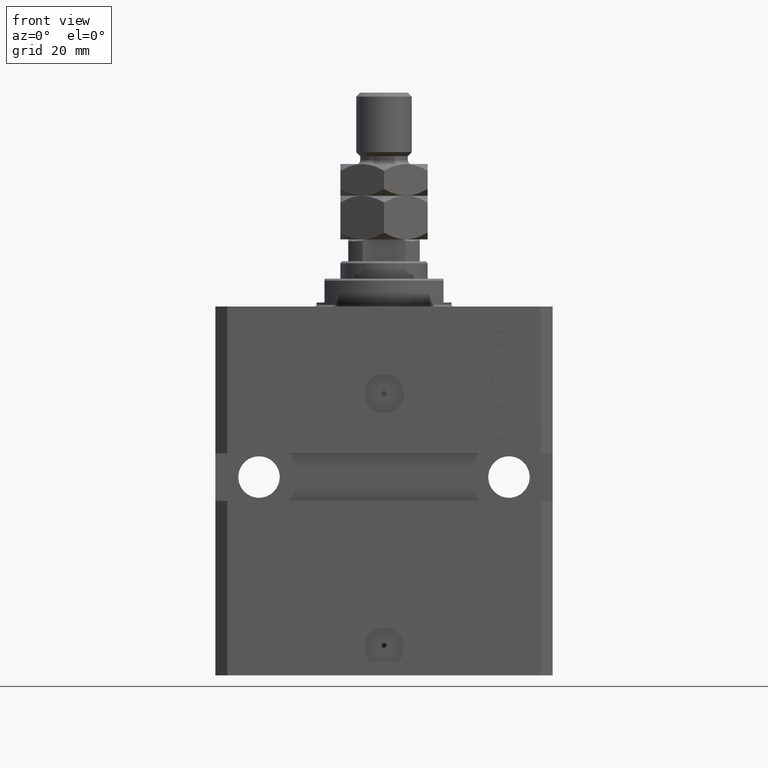
[diagram: clean part render]
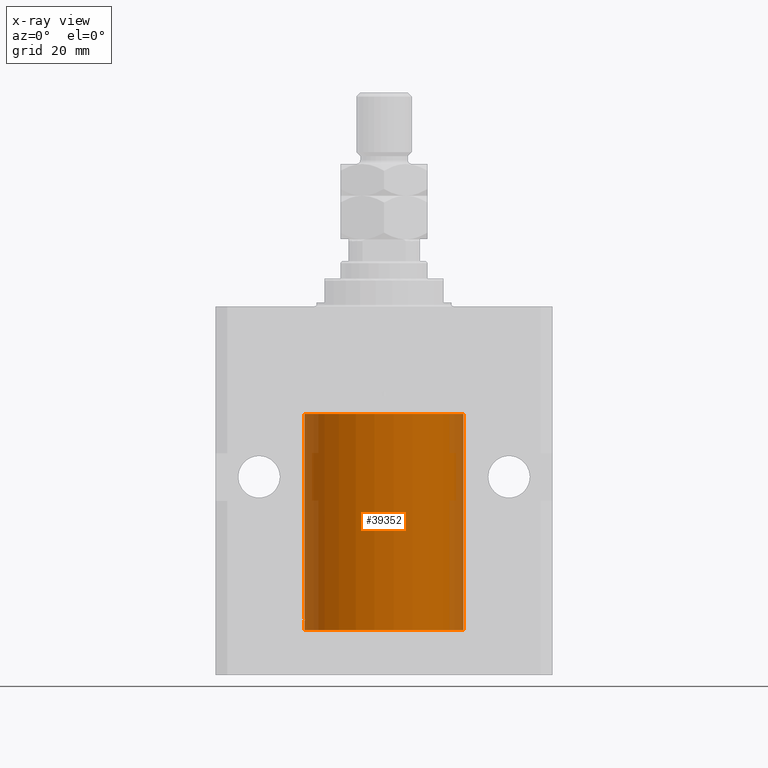
[diagram: x-ray — body ghosted, one internal face saturated and labeled with its STEP entity id]
A machine part, front view, then the same camera in x-ray: the body is ghosted and one INTERNAL B-rep face — a face not visible from any outside direction — is saturated and labeled: STEP entity #39352.
In plain terms, the highlighted cylindrical surface (partial cylindrical patch) has radius 20 mm, axis along (0, 0, 1).
Its self-contained STEP definition (entity closure, byte-faithful):
#520 = DIRECTION ( 'NONE',  ( 1.000000000000000000, 0.000000000000000000, 0.000000000000000000 ) ) ;
#1484 = DIRECTION ( 'NONE',  ( -0.000000000000000000, -0.000000000000000000, 1.000000000000000000 ) ) ;
#2245 = EDGE_LOOP ( 'NONE', ( #14735, #24410, #15234, #10928, #18873, #12469 ) ) ;
#3376 = CYLINDRICAL_SURFACE ( 'NONE', #9531, 20.00000000000000000 ) ;
#4374 = AXIS2_PLACEMENT_3D ( 'NONE', #24885, #6016, #520 ) ;
#5690 = CARTESIAN_POINT ( 'NONE',  ( -20.00000000000000000, 2.449293598294706513E-15, -81.60000000000000853 ) ) ;
#6016 = DIRECTION ( 'NONE',  ( 0.000000000000000000, 0.000000000000000000, 1.000000000000000000 ) ) ;
#6024 = VECTOR ( 'NONE', #22326, 1000.000000000000000 ) ;
#9272 = AXIS2_PLACEMENT_3D ( 'NONE', #20640, #25334, #44239 ) ;
#9531 = AXIS2_PLACEMENT_3D ( 'NONE', #26211, #25234, #14066 ) ;
#10359 = EDGE_CURVE ( 'NONE', #35118, #37611, #13893, .T. ) ;
#10928 = ORIENTED_EDGE ( 'NONE', *, *, #25828, .T. ) ;
#11439 = CARTESIAN_POINT ( 'NONE',  ( -20.00000000000010303, 3.580159286679549072E-13, -79.62500000000332534 ) ) ;
#11806 = VECTOR ( 'NONE', #1484, 1000.000000000000000 ) ;
#12469 = ORIENTED_EDGE ( 'NONE', *, *, #16429, .F. ) ;
#13295 = VERTEX_POINT ( 'NONE', #49052 ) ;
#13893 = CIRCLE ( 'NONE', #4374, 20.00000000000000000 ) ;
#14035 = B_SPLINE_CURVE_WITH_KNOTS ( 'NONE', 3,
 ( #11439, #26588, #41756, #22858, #34969, #32947, #39702, #39927, #28979, #25247 ),
 .UNSPECIFIED., .F., .F.,
 ( 4, 2, 2, 2, 4 ),
 ( 0.001954154509844221576, 0.002442582466643782209, 0.002931010423443342408, 0.003419438380242903041, 0.003907866337042463674 ),
 .UNSPECIFIED. ) ;
#14066 = DIRECTION ( 'NONE',  ( 1.000000000000000000, 0.000000000000000000, 0.000000000000000000 ) ) ;
#14735 = ORIENTED_EDGE ( 'NONE', *, *, #41995, .F. ) ;
#15085 = CARTESIAN_POINT ( 'NONE',  ( 20.00000000000000000, 0.000000000000000000, -81.60000000000000853 ) ) ;
#15234 = ORIENTED_EDGE ( 'NONE', *, *, #28648, .T. ) ;
#16429 = EDGE_CURVE ( 'NONE', #34405, #37611, #46769, .T. ) ;
#18510 = CARTESIAN_POINT ( 'NONE',  ( 20.00000000000000000, 0.000000000000000000, -27.10000000000000142 ) ) ;
#18873 = ORIENTED_EDGE ( 'NONE', *, *, #10359, .T. ) ;
#20640 = CARTESIAN_POINT ( 'NONE',  ( 0.000000000000000000, 0.000000000000000000, -81.60000000000000853 ) ) ;
#22326 = DIRECTION ( 'NONE',  ( -0.000000000000000000, -0.000000000000000000, 1.000000000000000000 ) ) ;
#22858 = CARTESIAN_POINT ( 'NONE',  ( -19.99257639367449357, -0.5569510432580352388, -79.32709448625169557 ) ) ;
#22980 = CARTESIAN_POINT ( 'NONE',  ( -20.00000000000010303, 3.580159286679549072E-13, -79.62500000000332534 ) ) ;
#24046 = VECTOR ( 'NONE', #35810, 1000.000000000000000 ) ;
#24410 = ORIENTED_EDGE ( 'NONE', *, *, #46132, .T. ) ;
#24885 = CARTESIAN_POINT ( 'NONE',  ( 0.000000000000000000, 0.000000000000000000, -27.10000000000000142 ) ) ;
#25234 = DIRECTION ( 'NONE',  ( -0.000000000000000000, -0.000000000000000000, 1.000000000000000000 ) ) ;
#25247 = CARTESIAN_POINT ( 'NONE',  ( -20.00000000000000000, -1.124177324826063808E-14, -78.37500000000000000 ) ) ;
#25334 = DIRECTION ( 'NONE',  ( 0.000000000000000000, 0.000000000000000000, 1.000000000000000000 ) ) ;
#25721 = FACE_OUTER_BOUND ( 'NONE', #2245, .T. ) ;
#25828 = EDGE_CURVE ( 'NONE', #43763, #35118, #26053, .T. ) ;
#26053 = LINE ( 'NONE', #41228, #6024 ) ;
#26211 = CARTESIAN_POINT ( 'NONE',  ( 0.000000000000000000, 0.000000000000000000, -81.60000000000000853 ) ) ;
#26588 = CARTESIAN_POINT ( 'NONE',  ( -20.00000000000000355, -0.1631318982819177366, -79.62500000000015632 ) ) ;
#27984 = VERTEX_POINT ( 'NONE', #22980 ) ;
#28648 = EDGE_CURVE ( 'NONE', #27984, #43763, #14035, .T. ) ;
#28979 = CARTESIAN_POINT ( 'NONE',  ( -20.00000000000000000, -0.1651542110816439091, -78.37500000000001421 ) ) ;
#32947 = CARTESIAN_POINT ( 'NONE',  ( -19.99022768983530440, -0.6251375268966040677, -78.83566303088220195 ) ) ;
#34405 = VERTEX_POINT ( 'NONE', #15085 ) ;
#34969 = CARTESIAN_POINT ( 'NONE',  ( -19.99023630310506761, -0.6248620367829604838, -79.16538138329534036 ) ) ;
#35118 = VERTEX_POINT ( 'NONE', #48712 ) ;
#35481 = CIRCLE ( 'NONE', #9272, 20.00000000000000000 ) ;
#35810 = DIRECTION ( 'NONE',  ( -0.000000000000000000, -0.000000000000000000, 1.000000000000000000 ) ) ;
#37611 = VERTEX_POINT ( 'NONE', #18510 ) ;
#39352 = ADVANCED_FACE ( 'NONE', ( #25721 ), #3376, .F. ) ;
#39702 = CARTESIAN_POINT ( 'NONE',  ( -19.99255948581289033, -0.5575529953197770894, -78.67383335671266309 ) ) ;
#39927 = CARTESIAN_POINT ( 'NONE',  ( -19.99765984516762174, -0.3269569594424049930, -78.44291008943298493 ) ) ;
#41126 = CARTESIAN_POINT ( 'NONE',  ( -20.00000000000000000, -1.124177324826063808E-14, -78.37500000000000000 ) ) ;
#41228 = CARTESIAN_POINT ( 'NONE',  ( -20.00000000000000000, 2.449293598294706513E-15, -81.60000000000000853 ) ) ;
#41756 = CARTESIAN_POINT ( 'NONE',  ( -19.99767054355995555, -0.3263099029014857599, -79.55741108240768256 ) ) ;
#41995 = EDGE_CURVE ( 'NONE', #13295, #34405, #35481, .T. ) ;
#43039 = CARTESIAN_POINT ( 'NONE',  ( 20.00000000000000000, 0.000000000000000000, -81.60000000000000853 ) ) ;
#43763 = VERTEX_POINT ( 'NONE', #41126 ) ;
#44239 = DIRECTION ( 'NONE',  ( 1.000000000000000000, 0.000000000000000000, 0.000000000000000000 ) ) ;
#46132 = EDGE_CURVE ( 'NONE', #13295, #27984, #46193, .T. ) ;
#46193 = LINE ( 'NONE', #5690, #11806 ) ;
#46769 = LINE ( 'NONE', #43039, #24046 ) ;
#48712 = CARTESIAN_POINT ( 'NONE',  ( -20.00000000000000000, 2.449293598294706513E-15, -27.10000000000000142 ) ) ;
#49052 = CARTESIAN_POINT ( 'NONE',  ( -20.00000000000000000, 2.449293598294706513E-15, -81.60000000000000853 ) ) ;